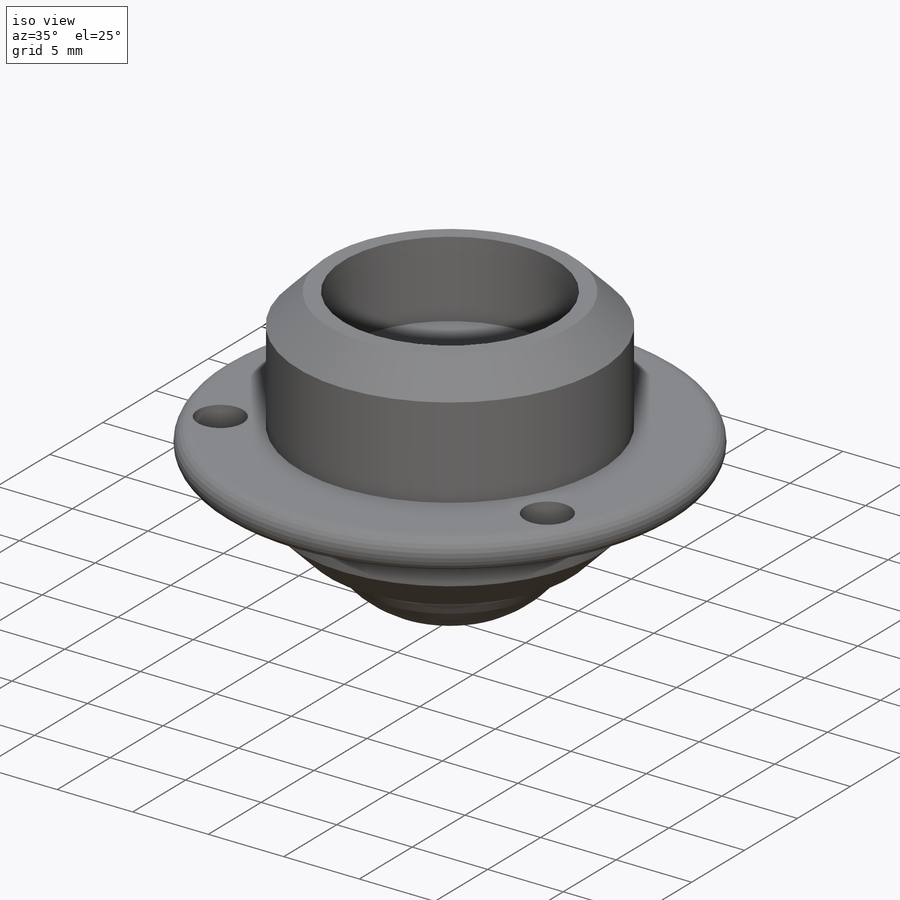
[diagram: iso view]
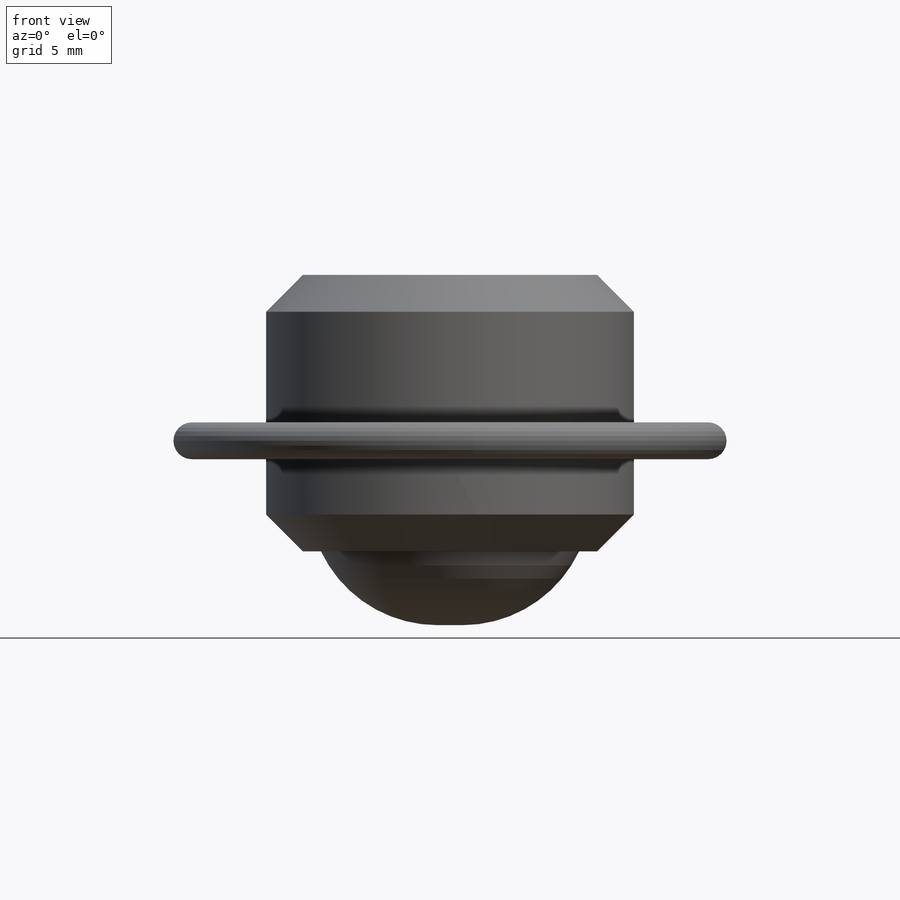
[diagram: front view]
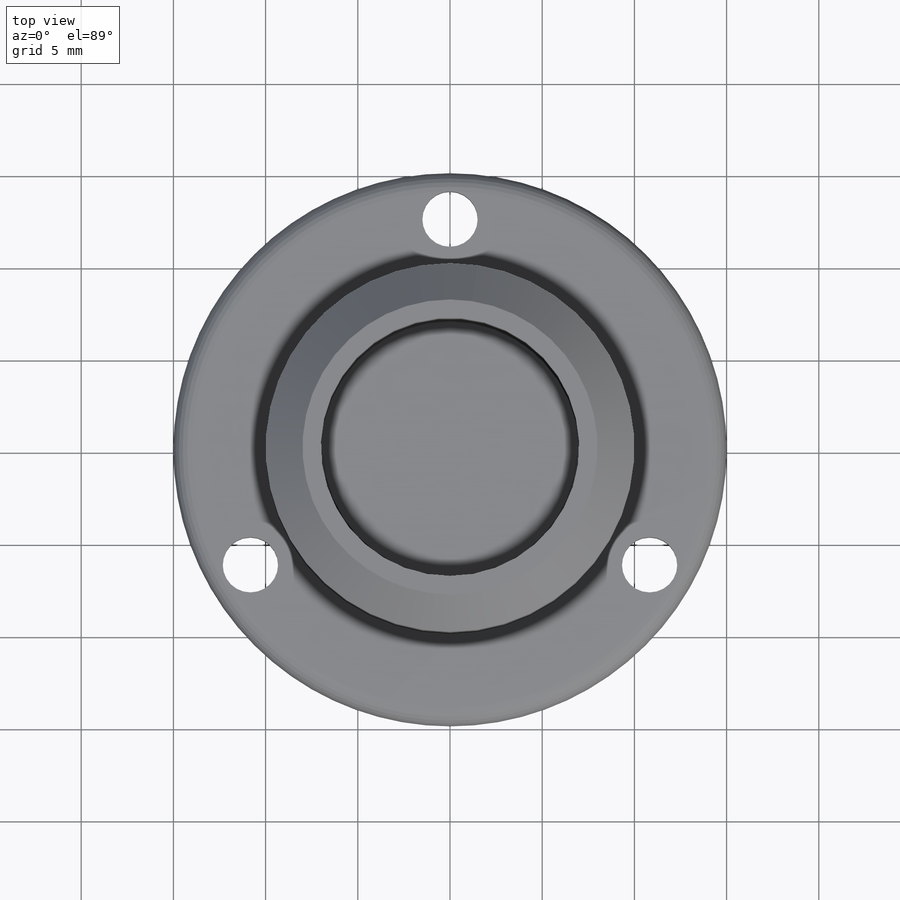
[diagram: top view]
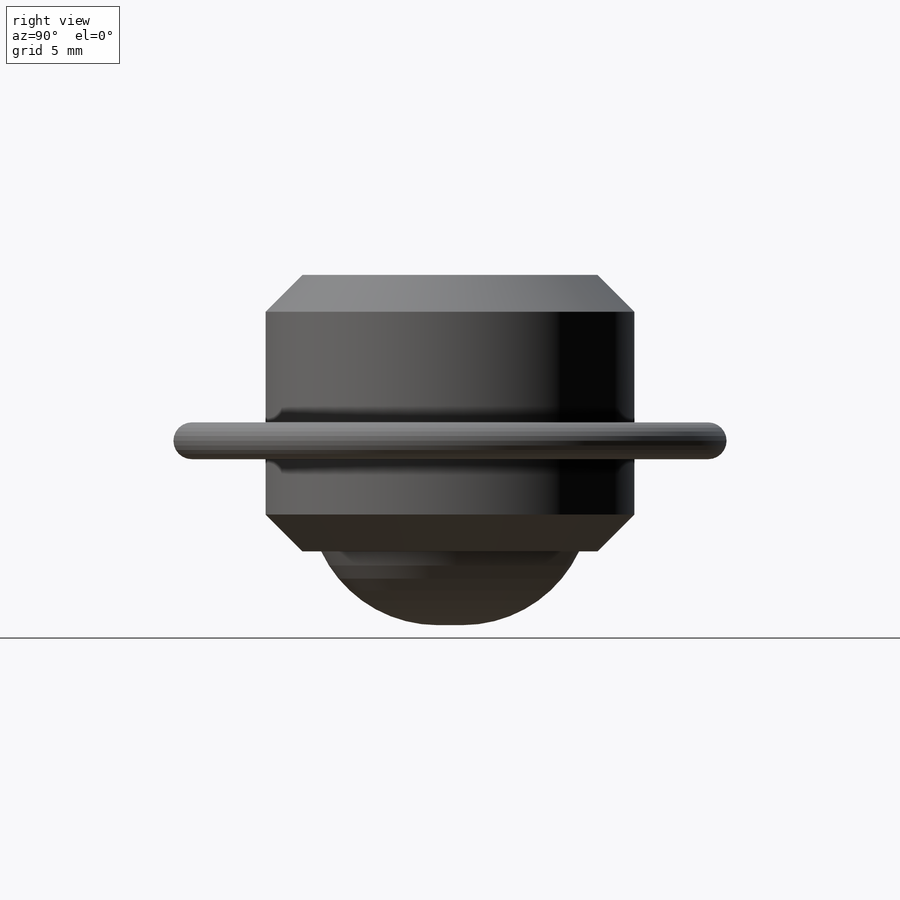
[diagram: right view]
SOLIDWORKS PART (.sldprt)
format: sldprt  version: not decoded by parser v0  size: 246,272 bytes
history: native  units: mm
features: sketch x7, extrude x5, plane x3, fillet x3, chamfer x2, cut_extrude x2, material x1, pattern_circular x1 (+9 scaffold rows collapsed)
feature tree (33):
  scaffold x9  (default folders/planes/origin — collapsed)
  material  "Matériau <non spécifié>"
  plane  "Plan de face"
  plane  "Plan de dessus"
  plane  "Plan de droite"
  sketch  "Esquisse1"  dims[D1=30.0mm]
  extrude  "Boss.-Extru.1"  Depth=2mm
  sketch  "Esquisse2"  dims[D1=20.0mm]
  extrude  "Boss.-Extru.2"  Depth=8mm
  chamfer  "Chanfrein3"  Distance=2mm Angle=45deg
  sketch  "Esquisse3"  dims[D1=20.0mm]
  extrude  "Boss.-Extru.3"  Depth=5mm
  chamfer  "Chanfrein4"  Distance=2mm Angle=45deg
  sketch  "Esquisse4"  dims[D1=3.0mm D2=12.5mm]
  cut_extrude  "Enlèv. mat.-Extru.1"  Depth=5mm
  pattern_circular  "Répétition circulaire1"  Count=3 Angle=120deg
  fillet  "Congé1"  Radius=1mm
  fillet  "Congé2"  Radius=1mm
  sketch  "Esquisse5"  dims[D1=14.0mm]
  cut_extrude  "Enlèv. mat.-Extru.2"  Depth=12mm
  sketch  "Esquisse7"  dims[D1=14.0mm]
  extrude  "Boss.-Extru.5"  Depth=7mm
  fillet  "Congé3"  Radius=7mm
  sketch  "Esquisse8"  dims[D1=13.8mm]
  extrude  "Boss.-Extru.7"  Depth=7mm
decode coverage: 20 of 20 modeling features carry decoded parameters
note: suppression state not decoded; provenance and decode notes live in map.json
